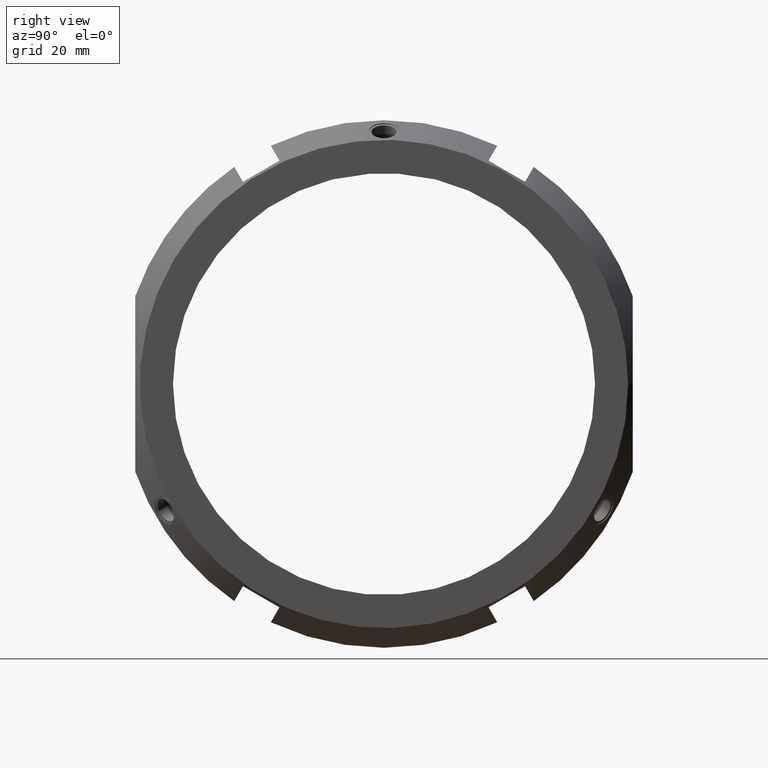
[diagram: clean part render]
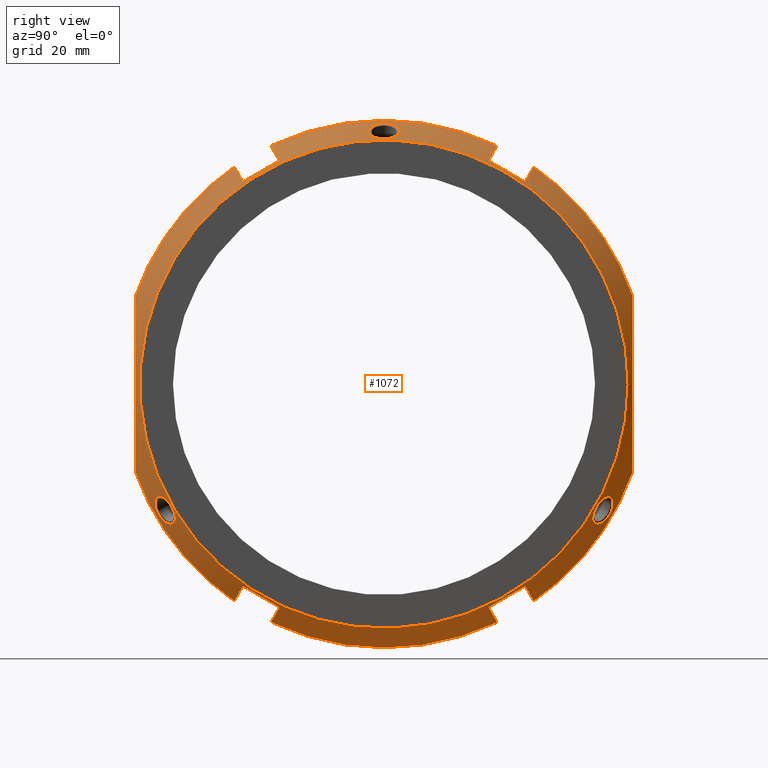
[diagram: same view with one face highlighted and labeled with its STEP entity id]
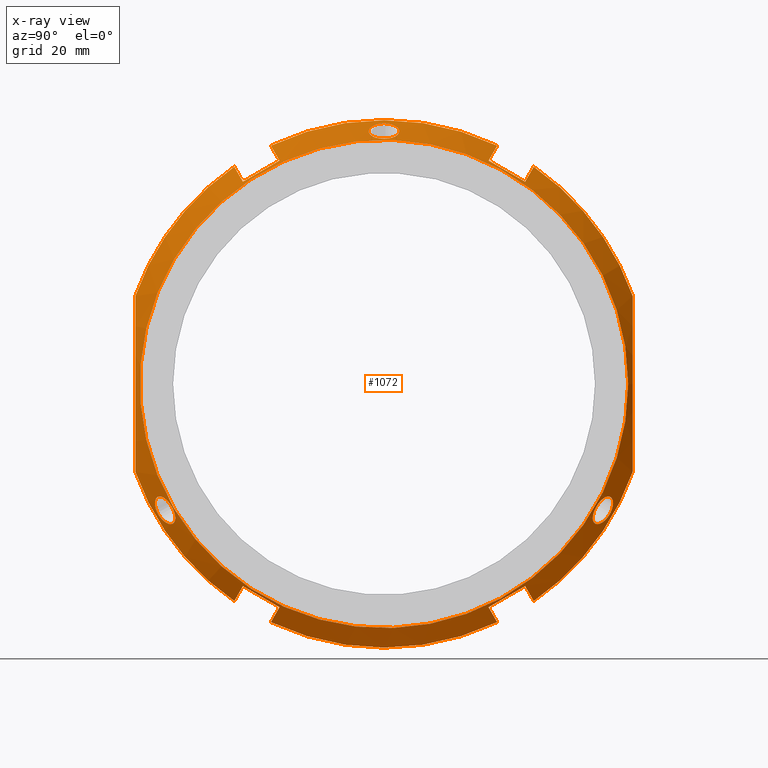
[diagram: x-ray of the same camera — body ghosted, the highlighted face saturated]
A machine part, right view. The second image highlights one B-rep face of the part: STEP entity #1072.
The next image is the same camera in x-ray: the body ghosted, the highlighted face saturated — about 0% of this face is hidden behind the body in this view.
In plain terms, the highlighted conical surface has half-angle 30 deg.
Its self-contained STEP definition (entity closure, byte-faithful):
#90=CARTESIAN_POINT('',(30.614253482908179,46.812177826491165,-67.0810704084317));
#91=VERTEX_POINT('',#90);
#98=CARTESIAN_POINT('',(30.6142534829082,34.687822173509019,-74.0810704084317));
#99=VERTEX_POINT('',#98);
#100=CARTESIAN_POINT('',(30.6142534829082,34.687822173509019,-74.0810704084317));
#101=CARTESIAN_POINT('',(31.651789254935458,40.750000000000412,-70.581070408431515));
#102=CARTESIAN_POINT('',(30.614253482908179,46.812177826491165,-67.0810704084317));
#110=(BOUNDED_CURVE()B_SPLINE_CURVE(2,(#100,#101,#102),.UNSPECIFIED.,.F.,.U.)B_SPLINE_CURVE_WITH_KNOTS((3,3),(2.587590213936822,4.111663475840894),.UNSPECIFIED.)CURVE()GEOMETRIC_REPRESENTATION_ITEM()RATIONAL_B_SPLINE_CURVE((1.034904695295717,1.038714936606125,1.034904695295717))REPRESENTATION_ITEM(''));
#111=EDGE_CURVE('',#99,#91,#110,.T.);
#143=CARTESIAN_POINT('',(20.741669750802277,37.547597453828743,-79.034346492175374));
#144=VERTEX_POINT('',#143);
#145=CARTESIAN_POINT('',(20.741669750802249,37.547597453828757,-79.034346492175388));
#146=CARTESIAN_POINT('',(25.845300668846072,36.069568828218962,-76.474325817577849));
#147=CARTESIAN_POINT('',(30.6142534829082,34.687822173509026,-74.081070408431714));
#155=(BOUNDED_CURVE()B_SPLINE_CURVE(2,(#145,#146,#147),.UNSPECIFIED.,.F.,.U.)B_SPLINE_CURVE_WITH_KNOTS((3,3),(0.0,1.140969624894709),.UNSPECIFIED.)CURVE()GEOMETRIC_REPRESENTATION_ITEM()RATIONAL_B_SPLINE_CURVE((1.0,1.000571151667129,1.0))REPRESENTATION_ITEM(''));
#156=EDGE_CURVE('',#144,#99,#155,.T.);
#187=CARTESIAN_POINT('',(20.741669750802298,49.671953106810882,-72.034346492175374));
#188=VERTEX_POINT('',#187);
#195=CARTESIAN_POINT('',(30.614253482908179,46.812177826491165,-67.081070408431714));
#196=CARTESIAN_POINT('',(25.845300696980232,48.193924473051453,-69.47432580346225));
#197=CARTESIAN_POINT('',(20.741669750802249,49.671953106810889,-72.034346492175402));
#205=(BOUNDED_CURVE()B_SPLINE_CURVE(2,(#195,#196,#197),.UNSPECIFIED.,.F.,.U.)B_SPLINE_CURVE_WITH_KNOTS((3,3),(0.0,1.140969624894707),.UNSPECIFIED.)CURVE()GEOMETRIC_REPRESENTATION_ITEM()RATIONAL_B_SPLINE_CURVE((1.0,1.000571151993168,1.0))REPRESENTATION_ITEM(''));
#206=EDGE_CURVE('',#91,#188,#205,.T.);
#234=CARTESIAN_POINT('',(30.614253482908147,-46.81217782649108,-67.081070408431756));
#235=VERTEX_POINT('',#234);
#242=CARTESIAN_POINT('',(20.741669750802249,-49.671953106810989,-72.034346492175331));
#243=VERTEX_POINT('',#242);
#244=CARTESIAN_POINT('',(20.741669750802252,-49.671953106810996,-72.034346492175331));
#245=CARTESIAN_POINT('',(25.84530067458719,-48.193924479538083,-69.474325814697366));
#246=CARTESIAN_POINT('',(30.614253482908147,-46.812177826491094,-67.081070408431756));
#254=(BOUNDED_CURVE()B_SPLINE_CURVE(2,(#244,#245,#246),.UNSPECIFIED.,.F.,.U.)B_SPLINE_CURVE_WITH_KNOTS((3,3),(0.0,1.140969624894704),.UNSPECIFIED.)CURVE()GEOMETRIC_REPRESENTATION_ITEM()RATIONAL_B_SPLINE_CURVE((1.0,1.000571151794437,1.0))REPRESENTATION_ITEM(''));
#255=EDGE_CURVE('',#243,#235,#254,.T.);
#288=CARTESIAN_POINT('',(20.741669750802274,-37.547597453828843,-79.034346492175331));
#289=VERTEX_POINT('',#288);
#296=CARTESIAN_POINT('',(30.614253482908179,-34.687822173508941,-74.081070408431756));
#297=VERTEX_POINT('',#296);
#298=CARTESIAN_POINT('',(30.614253482908179,-34.687822173508948,-74.081070408431756));
#299=CARTESIAN_POINT('',(25.845300647821205,-36.069568834309258,-76.474325828126524));
#300=CARTESIAN_POINT('',(20.741669750802252,-37.547597453828857,-79.034346492175331));
#308=(BOUNDED_CURVE()B_SPLINE_CURVE(2,(#298,#299,#300),.UNSPECIFIED.,.F.,.U.)B_SPLINE_CURVE_WITH_KNOTS((3,3),(0.0,1.140969624894707),.UNSPECIFIED.)CURVE()GEOMETRIC_REPRESENTATION_ITEM()RATIONAL_B_SPLINE_CURVE((1.0,1.00057115129315,1.0))REPRESENTATION_ITEM(''));
#309=EDGE_CURVE('',#297,#289,#308,.T.);
#339=CARTESIAN_POINT('',(30.614253482908147,-46.81217782649108,-67.081070408431756));
#340=CARTESIAN_POINT('',(31.65178925493543,-40.749999999999673,-70.581070408431941));
#341=CARTESIAN_POINT('',(30.614253482908179,-34.687822173508941,-74.081070408431756));
#349=(BOUNDED_CURVE()B_SPLINE_CURVE(2,(#339,#340,#341),.UNSPECIFIED.,.F.,.U.)B_SPLINE_CURVE_WITH_KNOTS((3,3),(2.587590213936811,4.11166347584088),.UNSPECIFIED.)CURVE()GEOMETRIC_REPRESENTATION_ITEM()RATIONAL_B_SPLINE_CURVE((1.034904695295717,1.038714936606125,1.034904695295717))REPRESENTATION_ITEM(''));
#350=EDGE_CURVE('',#235,#297,#349,.T.);
#557=CARTESIAN_POINT('',(20.741669750802263,0.0,0.0));
#558=DIRECTION('',(1.0,0.0,0.0));
#559=DIRECTION('',(0.0,1.0,0.0));
#560=AXIS2_PLACEMENT_3D('',#557,#558,#559);
#561=CIRCLE('',#560,87.5);
#562=EDGE_CURVE('',#289,#144,#561,.T.);
#575=CARTESIAN_POINT('',(20.741669750802263,-82.500000000000014,-29.154759474226442));
#576=VERTEX_POINT('',#575);
#577=CARTESIAN_POINT('',(20.741669750802263,0.0,0.0));
#578=DIRECTION('',(1.0,0.0,0.0));
#579=DIRECTION('',(0.0,1.0,0.0));
#580=AXIS2_PLACEMENT_3D('',#577,#578,#579);
#581=CIRCLE('',#580,87.5);
#582=EDGE_CURVE('',#576,#243,#581,.T.);
#600=CARTESIAN_POINT('',(30.6142534829082,34.687822173509019,74.0810704084317));
#601=VERTEX_POINT('',#600);
#608=CARTESIAN_POINT('',(30.614253482908179,46.812177826491165,67.0810704084317));
#609=VERTEX_POINT('',#608);
#610=CARTESIAN_POINT('',(30.614253482908179,46.812177826491165,67.0810704084317));
#611=CARTESIAN_POINT('',(31.651789254935458,40.749999999999751,70.581070408431884));
#612=CARTESIAN_POINT('',(30.6142534829082,34.687822173509019,74.0810704084317));
#620=(BOUNDED_CURVE()B_SPLINE_CURVE(2,(#610,#611,#612),.UNSPECIFIED.,.F.,.U.)B_SPLINE_CURVE_WITH_KNOTS((3,3),(2.587590213936805,4.111663475840875),.UNSPECIFIED.)CURVE()GEOMETRIC_REPRESENTATION_ITEM()RATIONAL_B_SPLINE_CURVE((1.034904695295717,1.038714936606126,1.034904695295718))REPRESENTATION_ITEM(''));
#621=EDGE_CURVE('',#609,#601,#620,.T.);
#639=CARTESIAN_POINT('',(20.741669750802298,49.671953106810882,72.034346492175374));
#640=VERTEX_POINT('',#639);
#641=CARTESIAN_POINT('',(20.741669750802259,49.671953106810889,72.034346492175402));
#642=CARTESIAN_POINT('',(25.845300680268931,48.193924477891592,69.474325811845588));
#643=CARTESIAN_POINT('',(30.614253482908179,46.812177826491165,67.0810704084317));
#651=(BOUNDED_CURVE()B_SPLINE_CURVE(2,(#641,#642,#643),.UNSPECIFIED.,.F.,.U.)B_SPLINE_CURVE_WITH_KNOTS((3,3),(0.0,1.112937817116618),.UNSPECIFIED.)CURVE()GEOMETRIC_REPRESENTATION_ITEM()RATIONAL_B_SPLINE_CURVE((1.0,1.000998230730982,1.00085385244194))REPRESENTATION_ITEM(''));
#652=EDGE_CURVE('',#640,#609,#651,.T.);
#669=CARTESIAN_POINT('',(20.741669750802277,37.547597453828743,79.034346492175374));
#670=VERTEX_POINT('',#669);
#677=CARTESIAN_POINT('',(30.6142534829082,34.687822173509019,74.0810704084317));
#678=CARTESIAN_POINT('',(25.845300675275894,36.069568826356623,76.474325814352156));
#679=CARTESIAN_POINT('',(20.741669750802259,37.547597453828757,79.034346492175388));
#687=(BOUNDED_CURVE()B_SPLINE_CURVE(2,(#677,#678,#679),.UNSPECIFIED.,.F.,.U.)B_SPLINE_CURVE_WITH_KNOTS((3,3),(0.831679651799433,1.944617469752237),.UNSPECIFIED.)CURVE()GEOMETRIC_REPRESENTATION_ITEM()RATIONAL_B_SPLINE_CURVE((1.00085385236167,1.000998230638143,1.0))REPRESENTATION_ITEM(''));
#688=EDGE_CURVE('',#601,#670,#687,.T.);
#700=CARTESIAN_POINT('',(30.614253482908147,-46.81217782649108,67.081070408431756));
#701=VERTEX_POINT('',#700);
#708=CARTESIAN_POINT('',(30.614253482908179,-34.687822173508941,74.081070408431756));
#709=VERTEX_POINT('',#708);
#710=CARTESIAN_POINT('',(30.614253482908179,-34.687822173508941,74.081070408431756));
#711=CARTESIAN_POINT('',(31.651789254935416,-40.750000000000348,70.581070408431572));
#712=CARTESIAN_POINT('',(30.614253482908147,-46.81217782649108,67.081070408431756));
#720=(BOUNDED_CURVE()B_SPLINE_CURVE(2,(#710,#711,#712),.UNSPECIFIED.,.F.,.U.)B_SPLINE_CURVE_WITH_KNOTS((3,3),(2.587590213936819,4.111663475840883),.UNSPECIFIED.)CURVE()GEOMETRIC_REPRESENTATION_ITEM()RATIONAL_B_SPLINE_CURVE((1.034904695295714,1.038714936606122,1.034904695295714))REPRESENTATION_ITEM(''));
#721=EDGE_CURVE('',#709,#701,#720,.T.);
#739=CARTESIAN_POINT('',(20.741669750802274,-37.547597453828843,79.034346492175331));
#740=VERTEX_POINT('',#739);
#741=CARTESIAN_POINT('',(20.741669750802263,-37.54759745382885,79.034346492175331));
#742=CARTESIAN_POINT('',(25.845300676153688,-36.069568826102191,76.474325813911463));
#743=CARTESIAN_POINT('',(30.614253482908179,-34.687822173508941,74.081070408431756));
#751=(BOUNDED_CURVE()B_SPLINE_CURVE(2,(#741,#742,#743),.UNSPECIFIED.,.F.,.U.)B_SPLINE_CURVE_WITH_KNOTS((3,3),(0.0,1.112937817792638),.UNSPECIFIED.)CURVE()GEOMETRIC_REPRESENTATION_ITEM()RATIONAL_B_SPLINE_CURVE((1.0,1.000998230639436,1.00085385236294))REPRESENTATION_ITEM(''));
#752=EDGE_CURVE('',#740,#709,#751,.T.);
#769=CARTESIAN_POINT('',(20.741669750802249,-49.671953106810989,72.034346492175331));
#770=VERTEX_POINT('',#769);
#777=CARTESIAN_POINT('',(30.614253482908147,-46.81217782649108,67.081070408431756));
#778=CARTESIAN_POINT('',(25.845300674254279,-48.193924479634859,69.474325814864983));
#779=CARTESIAN_POINT('',(20.741669750802259,-49.671953106810989,72.034346492175331));
#787=(BOUNDED_CURVE()B_SPLINE_CURVE(2,(#777,#778,#779),.UNSPECIFIED.,.F.,.U.)B_SPLINE_CURVE_WITH_KNOTS((3,3),(0.831679651648323,1.944617469752239),.UNSPECIFIED.)CURVE()GEOMETRIC_REPRESENTATION_ITEM()RATIONAL_B_SPLINE_CURVE((1.000853852325757,1.000998230596339,1.0))REPRESENTATION_ITEM(''));
#788=EDGE_CURVE('',#701,#770,#787,.T.);
#800=CARTESIAN_POINT('',(20.741669750802263,82.500000000000071,29.154759474226321));
#801=VERTEX_POINT('',#800);
#802=CARTESIAN_POINT('',(20.741669750802263,0.0,0.0));
#803=DIRECTION('',(1.0,0.0,0.0));
#804=DIRECTION('',(0.0,1.0,0.0));
#805=AXIS2_PLACEMENT_3D('',#802,#803,#804);
#806=CIRCLE('',#805,87.5);
#807=EDGE_CURVE('',#801,#640,#806,.T.);
#826=CARTESIAN_POINT('',(20.741669750802263,-82.500000000000057,29.15475947422637));
#827=VERTEX_POINT('',#826);
#834=CARTESIAN_POINT('',(20.741669750802263,0.0,0.0));
#835=DIRECTION('',(1.0,0.0,0.0));
#836=DIRECTION('',(0.0,1.0,0.0));
#837=AXIS2_PLACEMENT_3D('',#834,#835,#836);
#838=CIRCLE('',#837,87.5);
#839=EDGE_CURVE('',#770,#827,#838,.T.);
#851=CARTESIAN_POINT('',(20.741669750802263,82.500000000000028,-29.154759474226392));
#852=VERTEX_POINT('',#851);
#853=CARTESIAN_POINT('',(20.741669750802263,82.500000000000028,-29.154759474226417));
#854=CARTESIAN_POINT('',(37.567306167185521,82.500000000000057,-3.552714E-014));
#855=CARTESIAN_POINT('',(20.741669750802263,82.500000000000071,29.154759474226346));
#863=(BOUNDED_CURVE()B_SPLINE_CURVE(2,(#853,#854,#855),.UNSPECIFIED.,.F.,.U.)B_SPLINE_CURVE_WITH_KNOTS((3,3),(0.0,6.082762530298192),.UNSPECIFIED.)CURVE()GEOMETRIC_REPRESENTATION_ITEM()RATIONAL_B_SPLINE_CURVE((1.0,1.060606060606058,1.0))REPRESENTATION_ITEM(''));
#864=EDGE_CURVE('',#852,#801,#863,.T.);
#882=CARTESIAN_POINT('',(20.741669750802259,-82.500000000000057,29.154759474226395));
#883=CARTESIAN_POINT('',(37.567306167185578,-82.500000000000028,-2.172968E-014));
#884=CARTESIAN_POINT('',(20.741669750802263,-82.500000000000028,-29.154759474226466));
#892=(BOUNDED_CURVE()B_SPLINE_CURVE(2,(#882,#883,#884),.UNSPECIFIED.,.F.,.U.)B_SPLINE_CURVE_WITH_KNOTS((3,3),(0.0,6.082762530298204),.UNSPECIFIED.)CURVE()GEOMETRIC_REPRESENTATION_ITEM()RATIONAL_B_SPLINE_CURVE((1.0,1.060606060606059,1.0))REPRESENTATION_ITEM(''));
#893=EDGE_CURVE('',#827,#576,#892,.T.);
#899=CARTESIAN_POINT('',(26.370834875401123,0.0,0.0));
#900=DIRECTION('',(-1.0,0.0,0.0));
#901=DIRECTION('',(0.0,1.0,0.0));
#902=AXIS2_PLACEMENT_3D('',#899,#900,#901);
#903=CONICAL_SURFACE('',#902,84.25,29.999999999999972);
#904=ORIENTED_EDGE('',*,*,#206,.T.);
#905=CARTESIAN_POINT('',(20.741669750802263,0.0,0.0));
#906=DIRECTION('',(1.0,0.0,0.0));
#907=DIRECTION('',(0.0,1.0,0.0));
#908=AXIS2_PLACEMENT_3D('',#905,#906,#907);
#909=CIRCLE('',#908,87.5);
#910=EDGE_CURVE('',#188,#852,#909,.T.);
#911=ORIENTED_EDGE('',*,*,#910,.T.);
#912=ORIENTED_EDGE('',*,*,#864,.T.);
#913=ORIENTED_EDGE('',*,*,#807,.T.);
#914=ORIENTED_EDGE('',*,*,#652,.T.);
#915=ORIENTED_EDGE('',*,*,#621,.T.);
#916=ORIENTED_EDGE('',*,*,#688,.T.);
#917=CARTESIAN_POINT('',(20.741669750802263,0.0,0.0));
#918=DIRECTION('',(1.0,0.0,0.0));
#919=DIRECTION('',(0.0,1.0,0.0));
#920=AXIS2_PLACEMENT_3D('',#917,#918,#919);
#921=CIRCLE('',#920,87.5);
#922=EDGE_CURVE('',#670,#740,#921,.T.);
#923=ORIENTED_EDGE('',*,*,#922,.T.);
#924=ORIENTED_EDGE('',*,*,#752,.T.);
#925=ORIENTED_EDGE('',*,*,#721,.T.);
#926=ORIENTED_EDGE('',*,*,#788,.T.);
#927=ORIENTED_EDGE('',*,*,#839,.T.);
#928=ORIENTED_EDGE('',*,*,#893,.T.);
#929=ORIENTED_EDGE('',*,*,#582,.T.);
#930=ORIENTED_EDGE('',*,*,#255,.T.);
#931=ORIENTED_EDGE('',*,*,#350,.T.);
#932=ORIENTED_EDGE('',*,*,#309,.T.);
#933=ORIENTED_EDGE('',*,*,#562,.T.);
#934=ORIENTED_EDGE('',*,*,#156,.T.);
#935=ORIENTED_EDGE('',*,*,#111,.T.);
#936=EDGE_LOOP('',(#904,#911,#912,#913,#914,#915,#916,#923,#924,#925,#926,#927,#928,#929,#930,#931,#932,#933,#934,#935));
#937=FACE_OUTER_BOUND('',#936,.T.);
#938=CARTESIAN_POINT('',(31.999999999999986,81.0,0.0));
#939=VERTEX_POINT('',#938);
#940=CARTESIAN_POINT('',(31.999999999999986,0.0,0.0));
#941=DIRECTION('',(1.0,0.0,0.0));
#942=DIRECTION('',(0.0,1.0,0.0));
#943=AXIS2_PLACEMENT_3D('',#940,#941,#942);
#944=CIRCLE('',#943,81.0);
#945=EDGE_CURVE('',#939,#939,#944,.T.);
#946=ORIENTED_EDGE('',*,*,#945,.F.);
#947=EDGE_LOOP('',(#946));
#948=FACE_BOUND('',#947,.T.);
#949=CARTESIAN_POINT('',(27.016104421145684,5.097644791144188,83.722405695978907));
#950=VERTEX_POINT('',#949);
#951=CARTESIAN_POINT('',(27.016104421145684,5.097644791144188,83.722405695978907));
#952=CARTESIAN_POINT('',(27.559576910682676,5.078575204856971,83.409211720132177));
#953=CARTESIAN_POINT('',(28.140077710200519,4.935324724061873,83.08245291047804));
#954=CARTESIAN_POINT('',(29.210044870665456,4.396679648851462,82.494085113836562));
#955=CARTESIAN_POINT('',(29.699347618507865,4.001291448541141,82.232172787514514));
#956=CARTESIAN_POINT('',(30.472589729150492,3.100742354296191,81.824308025228845));
#957=CARTESIAN_POINT('',(30.809137999729717,2.534282618347618,81.650542571668424));
#958=CARTESIAN_POINT('',(31.255818598891491,1.297686522676271,81.42163850156939));
#959=CARTESIAN_POINT('',(31.365758412570457,0.627539947801145,81.366179551233699));
#960=CARTESIAN_POINT('',(31.365758412570457,-0.627539947801144,81.366179551233699));
#961=CARTESIAN_POINT('',(31.255818598891494,-1.297686522676267,81.42163850156939));
#962=CARTESIAN_POINT('',(30.809137999729721,-2.534282618347613,81.650542571668424));
#963=CARTESIAN_POINT('',(30.472589729150492,-3.100742354296191,81.824308025228845));
#964=CARTESIAN_POINT('',(29.699347618507865,-4.001291448541141,82.232172787514514));
#965=CARTESIAN_POINT('',(29.210044870665467,-4.396679648851461,82.494085113836547));
#966=CARTESIAN_POINT('',(28.140077710200529,-4.935324724061872,83.082452910478025));
#967=CARTESIAN_POINT('',(27.559576910682686,-5.078575204856969,83.409211720132191));
#968=CARTESIAN_POINT('',(26.450174604610908,-5.117502369359622,84.048541448391603));
#969=CARTESIAN_POINT('',(25.84752963836296,-5.005488629199631,84.404265931096987));
#970=CARTESIAN_POINT('',(24.741264187357267,-4.504472822519471,85.072087254857223));
#971=CARTESIAN_POINT('',(24.237442156524651,-4.115477378748781,85.383855141791713));
#972=CARTESIAN_POINT('',(23.442323088017112,-3.205776046714934,85.882224358883548));
#973=CARTESIAN_POINT('',(23.099070366551334,-2.625663776181364,86.101315498441323));
#974=CARTESIAN_POINT('',(22.644143292542097,-1.349520567748027,86.393446537990627));
#975=CARTESIAN_POINT('',(22.53229929396916,-0.653479878740884,86.466179551233722));
#976=CARTESIAN_POINT('',(22.53229929396916,0.653479878740884,86.466179551233722));
#977=CARTESIAN_POINT('',(22.644143292542104,1.349520567748033,86.393446537990627));
#978=CARTESIAN_POINT('',(23.099070366551345,2.625663776181368,86.101315498441323));
#979=CARTESIAN_POINT('',(23.442323088017112,3.205776046714933,85.882224358883548));
#980=CARTESIAN_POINT('',(24.237442156524651,4.115477378748781,85.383855141791713));
#981=CARTESIAN_POINT('',(24.741264187357267,4.504472822519472,85.072087254857223));
#982=CARTESIAN_POINT('',(25.84752963836296,5.005488629199632,84.404265931096987));
#983=CARTESIAN_POINT('',(26.450174604610901,5.117502369359624,84.048541448391575));
#984=CARTESIAN_POINT('',(27.016104421145684,5.097644791144187,83.722405695978907));
#985=B_SPLINE_CURVE_WITH_KNOTS('',3,(#951,#952,#953,#954,#955,#956,#957,#958,#959,#960,#961,#962,#963,#964,#965,#966,#967,#968,#969,#970,#971,#972,#973,#974,#975,#976,#977,#978,#979,#980,#981,#982,#983,#984),.UNSPECIFIED.,.T.,.U.,(4,2,2,2,2,2,2,2,2,2,2,2,2,2,2,2,4),(0.0,0.188264392878802,0.376528785757605,0.564790770097948,0.753052754438292,0.941314738778635,1.129576723118979,1.317841115997781,1.506105508876584,1.702149348027861,1.898193187179139,2.094237150801404,2.290281114423669,2.486325078045935,2.6823690416682,2.878412880819478,3.074456719970756),.UNSPECIFIED.);
#986=EDGE_CURVE('',#950,#950,#985,.T.);
#987=ORIENTED_EDGE('',*,*,#986,.T.);
#988=EDGE_LOOP('',(#987));
#989=FACE_BOUND('',#988,.T.);
#990=CARTESIAN_POINT('',(27.016104421145684,-75.05455259423681,-37.446512959389146));
#991=VERTEX_POINT('',#990);
#992=CARTESIAN_POINT('',(27.016104421145684,-75.05455259423681,-37.446512959389146));
#993=CARTESIAN_POINT('',(27.559576910682676,-74.773783861697694,-37.306430717630171));
#994=CARTESIAN_POINT('',(28.140077710200533,-74.419177191229295,-37.267109868275995));
#995=CARTESIAN_POINT('',(29.210044870665467,-73.640313194963895,-37.439406288710849));
#996=CARTESIAN_POINT('',(29.699347618507868,-73.215796366649585,-37.650866351375171));
#997=CARTESIAN_POINT('',(30.472589729150496,-72.412300574079197,-38.226832363203521));
#998=CARTESIAN_POINT('',(30.809137999729721,-71.978585409021449,-38.630518157975814));
#999=CARTESIAN_POINT('',(31.255818598891494,-71.162050621450362,-39.586989755998331));
#1000=CARTESIAN_POINT('',(31.365758412570454,-70.778948474154873,-40.139624238931475));
#1001=CARTESIAN_POINT('',(31.365758412570454,-70.151408526353734,-41.226555312302189));
#1002=CARTESIAN_POINT('',(31.255818598891491,-69.864364098774089,-41.834648745571023));
#1003=CARTESIAN_POINT('',(30.809137999729717,-69.444302790673817,-43.020024413692582));
#1004=CARTESIAN_POINT('',(30.472589729150485,-69.311558219782995,-43.597475662025289));
#1005=CARTESIAN_POINT('',(29.699347618507854,-69.214504918108432,-44.581306436139329));
#1006=CARTESIAN_POINT('',(29.210044870665449,-69.243633546112434,-45.054678825125684));
#1007=CARTESIAN_POINT('',(28.140077710200515,-69.483852467167438,-45.815343042202016));
#1008=CARTESIAN_POINT('',(27.559576910682672,-69.69520865684072,-46.102781002501978));
#1009=CARTESIAN_POINT('',(26.45017460461089,-70.22942086065666,-46.456157779988274));
#1010=CARTESIAN_POINT('',(25.847529638362943,-70.593494169507608,-46.537013276789509));
#1011=CARTESIAN_POINT('',(24.741264187357253,-71.42235230441301,-46.437031522387059));
#1012=CARTESIAN_POINT('',(24.237442156524651,-71.886848936467828,-46.256035529592481));
#1013=CARTESIAN_POINT('',(23.442323088017115,-72.773300004950443,-45.717395674740537));
#1014=CARTESIAN_POINT('',(23.099070366551345,-73.253094632818318,-45.324549281190272));
#1015=CARTESIAN_POINT('',(22.644143292542111,-74.144159138518646,-44.365442363594681));
#1016=CARTESIAN_POINT('',(22.532299293969164,-74.555168120184518,-43.799019951468395));
#1017=CARTESIAN_POINT('',(22.532299293969164,-75.208647998925386,-42.667159599765242));
#1018=CARTESIAN_POINT('',(22.644143292542111,-75.493679706266676,-42.028004174395896));
#1019=CARTESIAN_POINT('',(23.099070366551349,-75.878758408999673,-40.77676621725098));
#1020=CARTESIAN_POINT('',(23.442323088017126,-75.979076051665373,-40.164828684142975));
#1021=CARTESIAN_POINT('',(24.237442156524654,-76.002326315216607,-39.127819612199211));
#1022=CARTESIAN_POINT('',(24.74126418735726,-75.926825126932471,-38.635055732470143));
#1023=CARTESIAN_POINT('',(25.84752963836295,-75.59898279870724,-37.867252654307457));
#1024=CARTESIAN_POINT('',(26.450174604610893,-75.346923230016259,-37.592383668403286));
#1025=CARTESIAN_POINT('',(27.016104421145684,-75.05455259423681,-37.446512959389146));
#1026=B_SPLINE_CURVE_WITH_KNOTS('',3,(#992,#993,#994,#995,#996,#997,#998,#999,#1000,#1001,#1002,#1003,#1004,#1005,#1006,#1007,#1008,#1009,#1010,#1011,#1012,#1013,#1014,#1015,#1016,#1017,#1018,#1019,#1020,#1021,#1022,#1023,#1024,#1025),.UNSPECIFIED.,.T.,.U.,(4,2,2,2,2,2,2,2,2,2,2,2,2,2,2,2,4),(0.0,0.188264392878802,0.376528785757605,0.564790770097949,0.753052754438292,0.941314738778637,1.129576723118981,1.317841115997783,1.506105508876585,1.702149348027864,1.898193187179142,2.094237150801407,2.290281114423671,2.486325078045936,2.6823690416682,2.878412880819478,3.074456719970756),.UNSPECIFIED.);
#1027=EDGE_CURVE('',#991,#991,#1026,.T.);
#1028=ORIENTED_EDGE('',*,*,#1027,.T.);
#1029=EDGE_LOOP('',(#1028));
#1030=FACE_BOUND('',#1029,.T.);
#1031=CARTESIAN_POINT('',(27.016104421145677,69.956907803092605,-46.275892736589775));
#1032=VERTEX_POINT('',#1031);
#1033=CARTESIAN_POINT('',(27.016104421145677,69.956907803092605,-46.275892736589775));
#1034=CARTESIAN_POINT('',(27.559576910682672,69.695208656840691,-46.102781002502027));
#1035=CARTESIAN_POINT('',(28.140077710200515,69.483852467167395,-45.815343042202073));
#1036=CARTESIAN_POINT('',(29.210044870665453,69.243633546112392,-45.054678825125734));
#1037=CARTESIAN_POINT('',(29.699347618507858,69.214504918108403,-44.581306436139357));
#1038=CARTESIAN_POINT('',(30.472589729150489,69.311558219782967,-43.597475662025325));
#1039=CARTESIAN_POINT('',(30.809137999729717,69.444302790673788,-43.020024413692617));
#1040=CARTESIAN_POINT('',(31.255818598891491,69.864364098774061,-41.834648745571059));
#1041=CARTESIAN_POINT('',(31.365758412570454,70.15140852635372,-41.226555312302239));
#1042=CARTESIAN_POINT('',(31.365758412570454,70.778948474154859,-40.139624238931539));
#1043=CARTESIAN_POINT('',(31.255818598891487,71.162050621450334,-39.586989755998381));
#1044=CARTESIAN_POINT('',(30.809137999729714,71.978585409021434,-38.630518157975857));
#1045=CARTESIAN_POINT('',(30.472589729150489,72.412300574079168,-38.226832363203577));
#1046=CARTESIAN_POINT('',(29.699347618507858,73.215796366649542,-37.650866351375228));
#1047=CARTESIAN_POINT('',(29.210044870665449,73.640313194963866,-37.439406288710892));
#1048=CARTESIAN_POINT('',(28.140077710200519,74.419177191229281,-37.267109868276044));
#1049=CARTESIAN_POINT('',(27.559576910682672,74.773783861697666,-37.306430717630235));
#1050=CARTESIAN_POINT('',(26.45017460461089,75.346923230016245,-37.592383668403343));
#1051=CARTESIAN_POINT('',(25.847529638362943,75.598982798707212,-37.867252654307507));
#1052=CARTESIAN_POINT('',(24.741264187357249,75.926825126932442,-38.635055732470207));
#1053=CARTESIAN_POINT('',(24.23744215652464,76.002326315216564,-39.127819612199268));
#1054=CARTESIAN_POINT('',(23.442323088017112,75.979076051665331,-40.164828684143039));
#1055=CARTESIAN_POINT('',(23.099070366551334,75.87875840899963,-40.776766217251051));
#1056=CARTESIAN_POINT('',(22.644143292542104,75.493679706266633,-42.02800417439596));
#1057=CARTESIAN_POINT('',(22.53229929396916,75.208647998925358,-42.667159599765313));
#1058=CARTESIAN_POINT('',(22.53229929396916,74.555168120184476,-43.799019951468466));
#1059=CARTESIAN_POINT('',(22.6441432925421,74.144159138518603,-44.365442363594745));
#1060=CARTESIAN_POINT('',(23.099070366551338,73.253094632818275,-45.324549281190336));
#1061=CARTESIAN_POINT('',(23.442323088017119,72.7733000049504,-45.717395674740608));
#1062=CARTESIAN_POINT('',(24.237442156524651,71.886848936467786,-46.256035529592545));
#1063=CARTESIAN_POINT('',(24.741264187357253,71.422352304412982,-46.437031522387109));
#1064=CARTESIAN_POINT('',(25.847529638362946,70.593494169507579,-46.537013276789558));
#1065=CARTESIAN_POINT('',(26.45017460461089,70.229420860656603,-46.456157779988317));
#1066=CARTESIAN_POINT('',(27.016104421145677,69.956907803092591,-46.275892736589775));
#1067=B_SPLINE_CURVE_WITH_KNOTS('',3,(#1033,#1034,#1035,#1036,#1037,#1038,#1039,#1040,#1041,#1042,#1043,#1044,#1045,#1046,#1047,#1048,#1049,#1050,#1051,#1052,#1053,#1054,#1055,#1056,#1057,#1058,#1059,#1060,#1061,#1062,#1063,#1064,#1065,#1066),.UNSPECIFIED.,.T.,.U.,(4,2,2,2,2,2,2,2,2,2,2,2,2,2,2,2,4),(0.0,0.188264392878803,0.376528785757606,0.564790770097949,0.753052754438293,0.941314738778636,1.12957672311898,1.317841115997782,1.506105508876585,1.702149348027863,1.898193187179141,2.094237150801405,2.29028111442367,2.486325078045935,2.6823690416682,2.878412880819478,3.074456719970755),.UNSPECIFIED.);
#1068=EDGE_CURVE('',#1032,#1032,#1067,.T.);
#1069=ORIENTED_EDGE('',*,*,#1068,.T.);
#1070=EDGE_LOOP('',(#1069));
#1071=FACE_BOUND('',#1070,.T.);
#1072=ADVANCED_FACE('',(#937,#948,#989,#1030,#1071),#903,.T.);